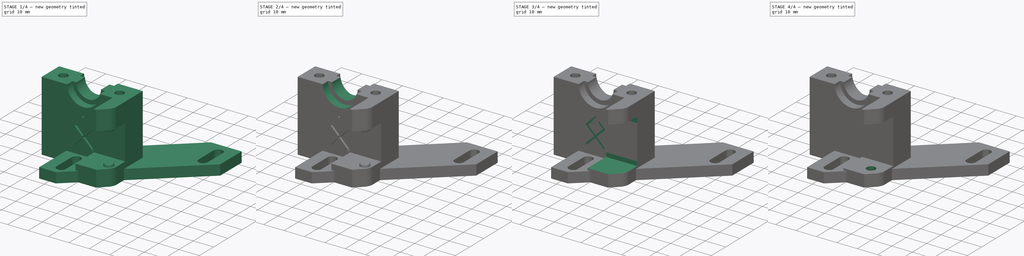
[diagram: build sequence overview — one tinted view per stage of 4, left to right]
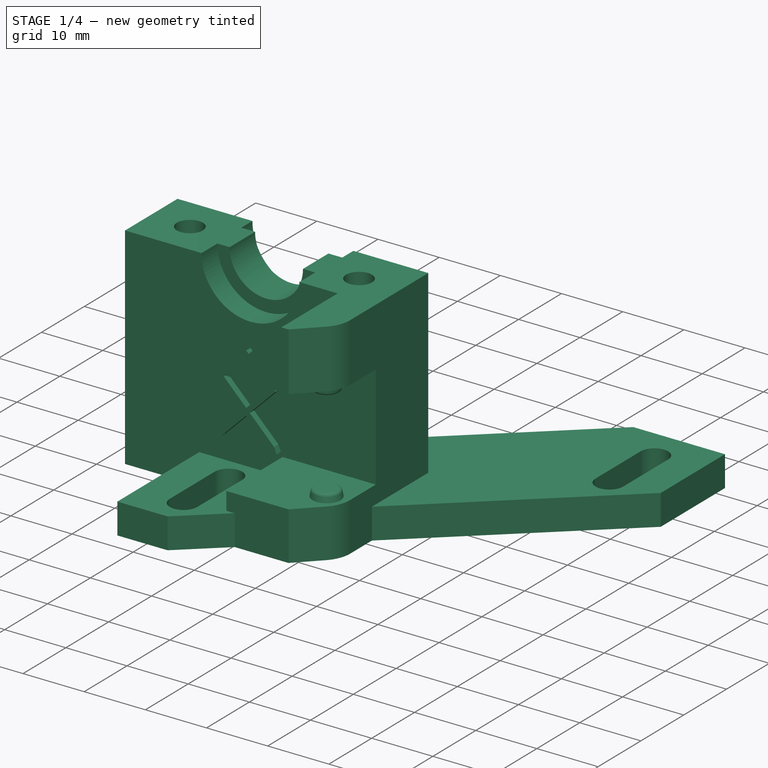
[diagram: stage 1 of 4 — iso view after this stage's code; geometry added in this stage tinted green]
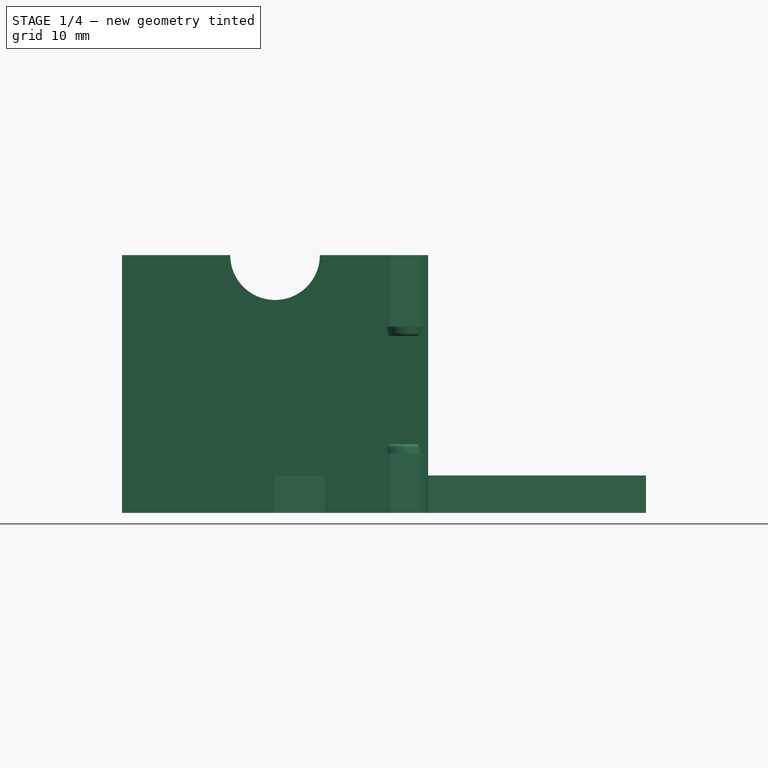
[diagram: stage 1 of 4 — front view after this stage's code; geometry added in this stage tinted green]
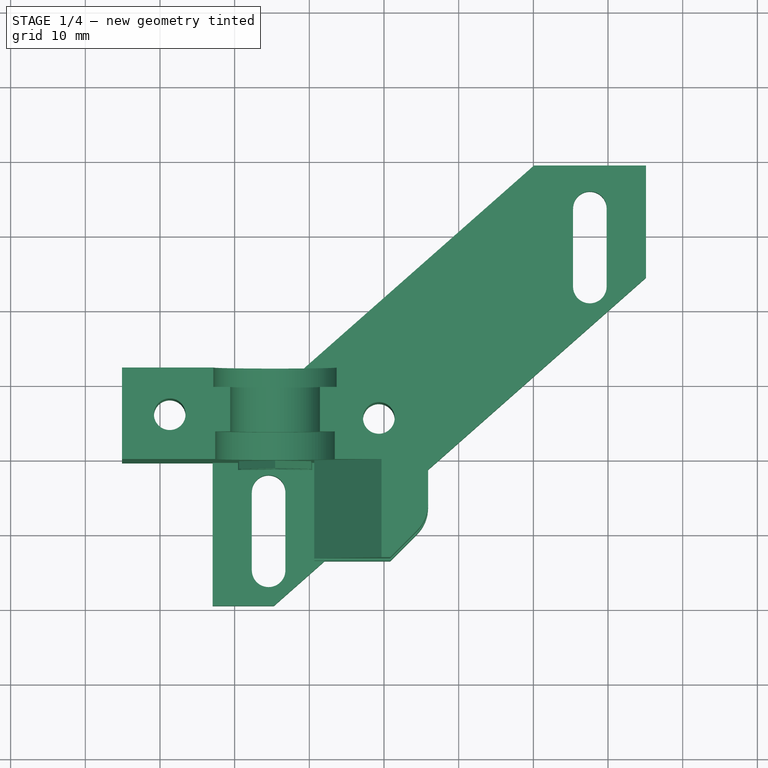
[diagram: stage 1 of 4 — top view after this stage's code; geometry added in this stage tinted green]
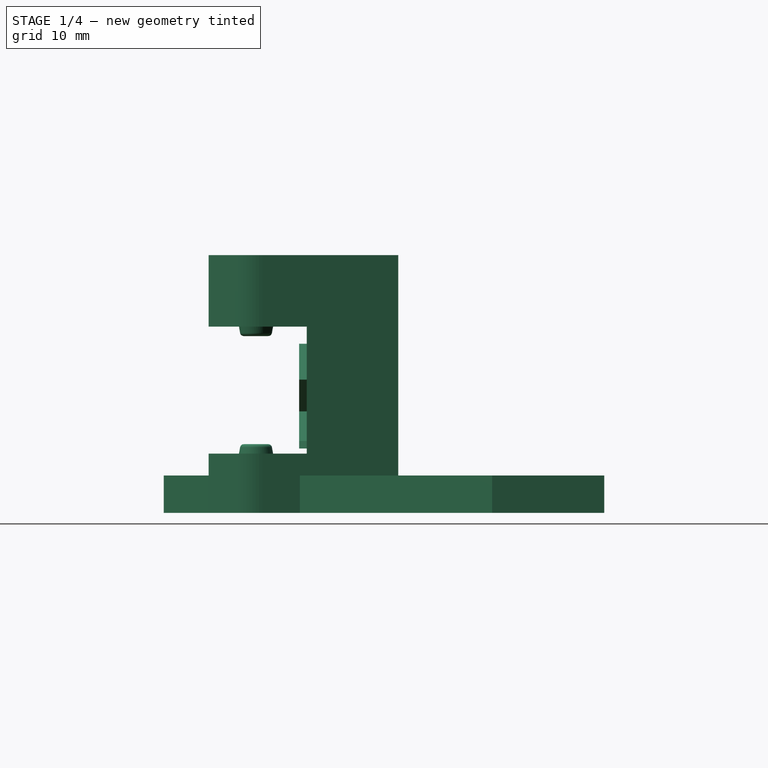
[diagram: stage 1 of 4 — right view after this stage's code; geometry added in this stage tinted green]
FCSTD DOCUMENT  (FreeCAD 0.18R16131 (Git))
Label: Holder_Chain
License: All rights reserved
LicenseURL: http://en.wikipedia.org/wiki/All_rights_reserved
objects: PartDesign::Pocket×8, Sketcher::SketchObject×7, App::MeasureDistance×6, Part::Feature×1, PartDesign::FeatureBase×1, PartDesign::Body×1
note: 26 computed .brp shape members not serialized (recipe doc carries the construction recipe); baked Part::Feature solids carry a one-line shape summary decoded from their .brp

FEATURE [Part::Feature] E3DV6_E3DHolder_with_Chain_V4001001001_solid  label="E3DV6_E3DHolder_with_Chain_V4003 (Solid)"
  shape: bbox 70.18 x 58.97 x 34.5 mm, 2813 faces (baked)
FEATURE [PartDesign::FeatureBase] BaseFeature
  BaseFeature = -> E3DV6_E3DHolder_with_Chain_V4001001001_solid
FEATURE [Sketcher::SketchObject] Sketch  label="BigHole"
  MapMode = 5
  Placement = pos=(0,111.907,0) rot=(0,0.707107,0.707107;3.14159rad)
  Support = -> [BaseFeature]
  sketch-geometry (1):
    g0: Circle CenterX=-95.4037 CenterY=34.4932 CenterZ=0 NormalX=0 NormalY=0 NormalZ=1 AngleXU=0 Radius=8.25
  constraints (1):
    c: Radius(g0) = 8.25  'BigHole'
FEATURE [PartDesign::Pocket] Pocket  label="BigHoleUnder"
  BaseFeature = -> BaseFeature
  Length = 2.6
  Length2 = 100
  Profile = -> Sketch
  Type = 0
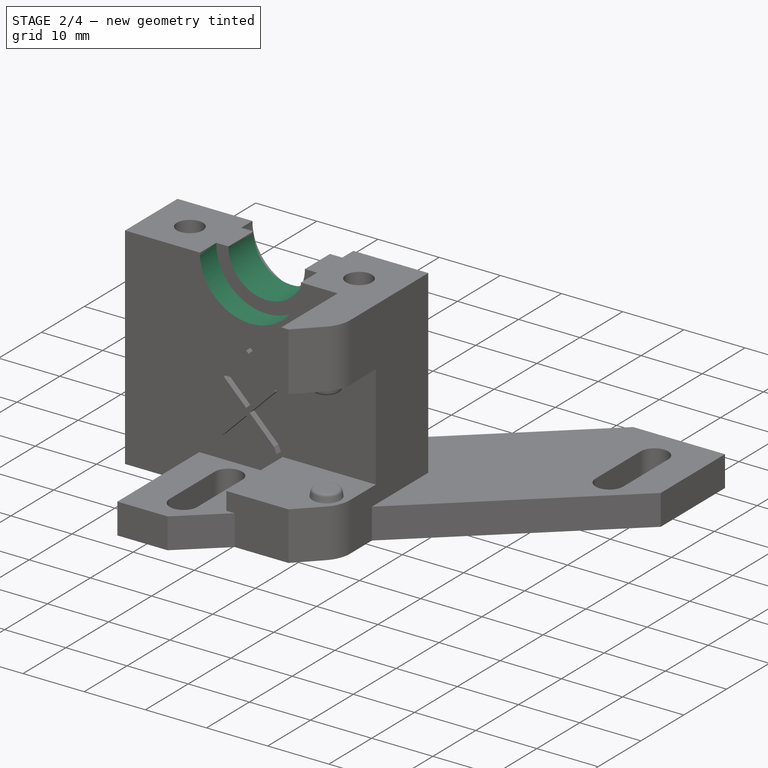
[diagram: stage 2 of 4 — iso view after this stage's code; geometry added in this stage tinted green]
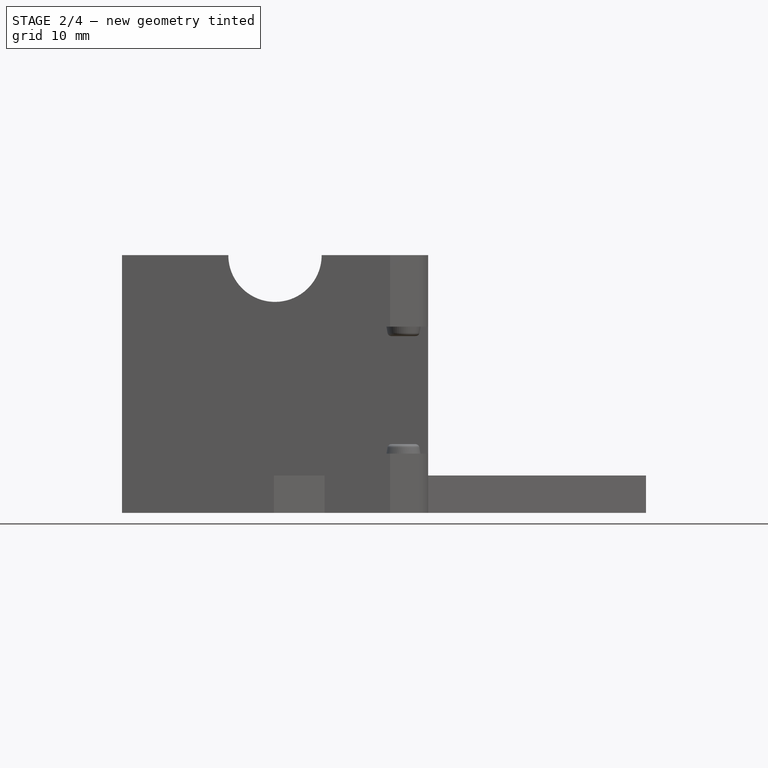
[diagram: stage 2 of 4 — front view after this stage's code; geometry added in this stage tinted green]
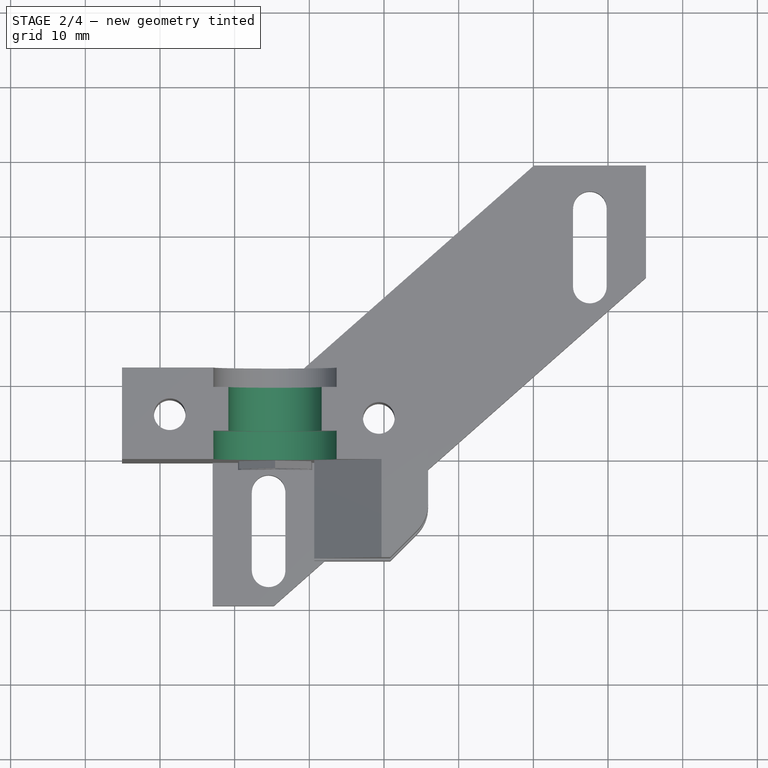
[diagram: stage 2 of 4 — top view after this stage's code; geometry added in this stage tinted green]
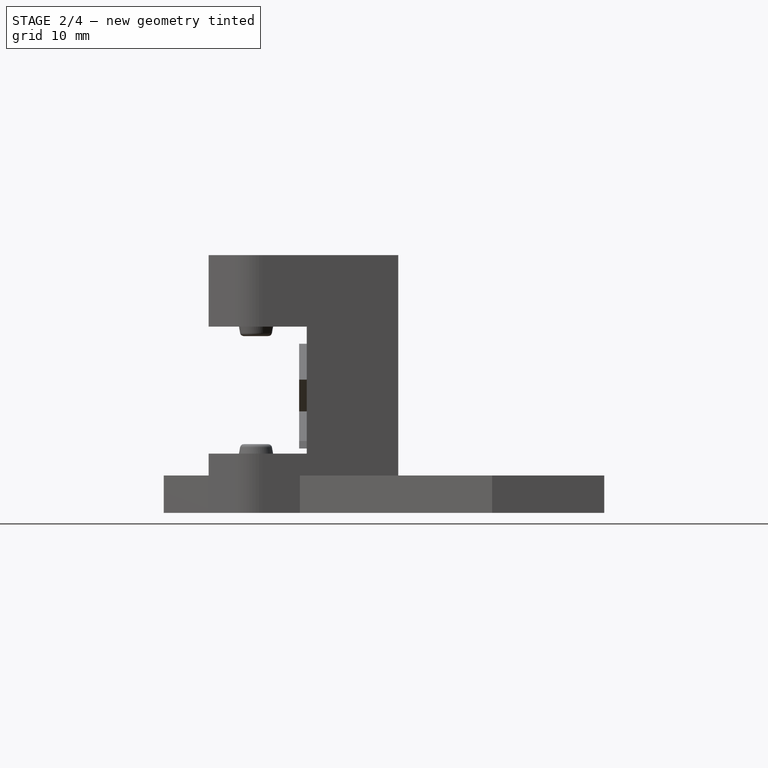
[diagram: stage 2 of 4 — right view after this stage's code; geometry added in this stage tinted green]
FEATURE [Sketcher::SketchObject] Sketch001
  MapMode = 5
  Placement = pos=(6.23e-14,109.307,-1.082e-13) rot=(0,0.707107,0.707107;3.14159rad)
  Support = -> [Pocket]
  sketch-geometry (1):
    g0: Circle CenterX=-95.4017 CenterY=34.4959 CenterZ=0 NormalX=0 NormalY=0 NormalZ=1 AngleXU=0 Radius=6.25
  constraints (1):
    c: Radius(g0) = 6.25
FEATURE [PartDesign::Pocket] Pocket001  label="SmallHole"
  BaseFeature = -> Pocket
  Length = 5
  Length2 = 100
  Profile = -> Sketch001
  Type = 1
FEATURE [Sketcher::SketchObject] Sketch002
  MapMode = 5
  Placement = pos=(0,99.657,0) rot=(1,0,0;1.5708rad)
  Support = -> [Pocket001]
  sketch-geometry (1):
    g0: Circle CenterX=95.4036 CenterY=34.4795 CenterZ=0 NormalX=0 NormalY=0 NormalZ=1 AngleXU=0 Radius=8.25
  constraints (1):
    c: Radius(g0) = 8.25
FEATURE [PartDesign::Pocket] Pocket002  label="BigHoleTop"
  BaseFeature = -> Pocket001
  Length = 3.8
  Length2 = 100
  Profile = -> Sketch002
  Type = 0
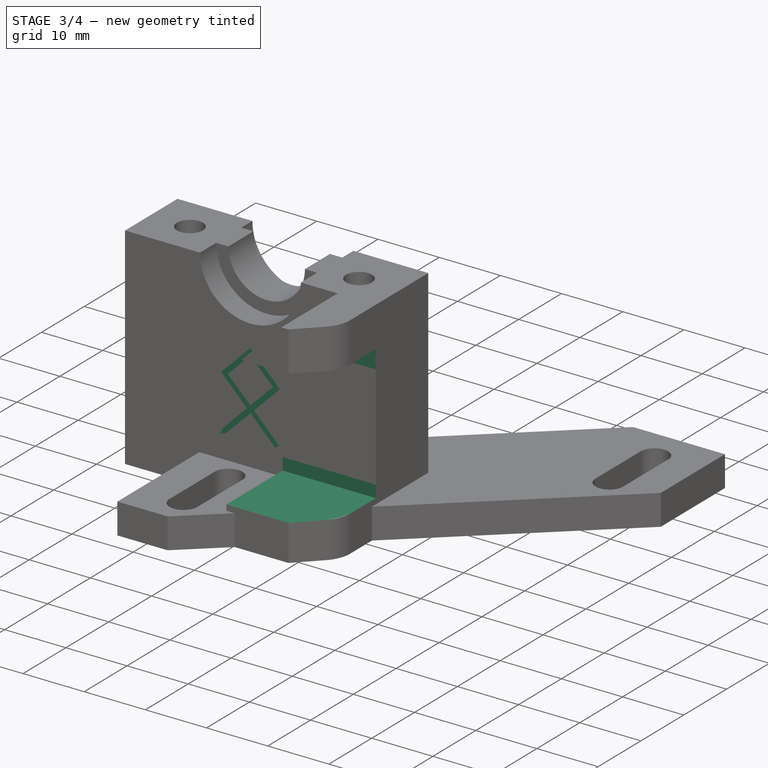
[diagram: stage 3 of 4 — iso view after this stage's code; geometry added in this stage tinted green]
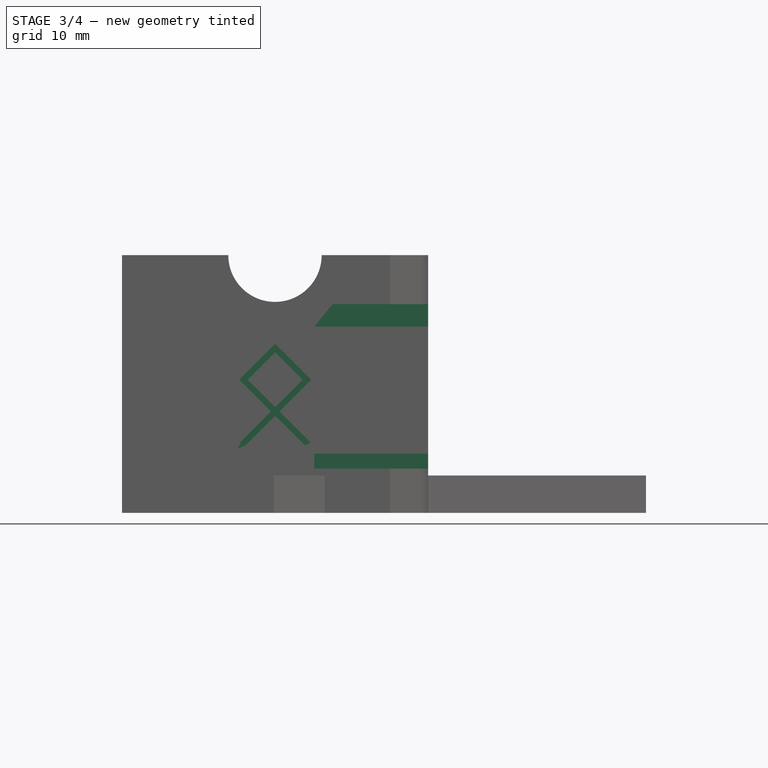
[diagram: stage 3 of 4 — front view after this stage's code; geometry added in this stage tinted green]
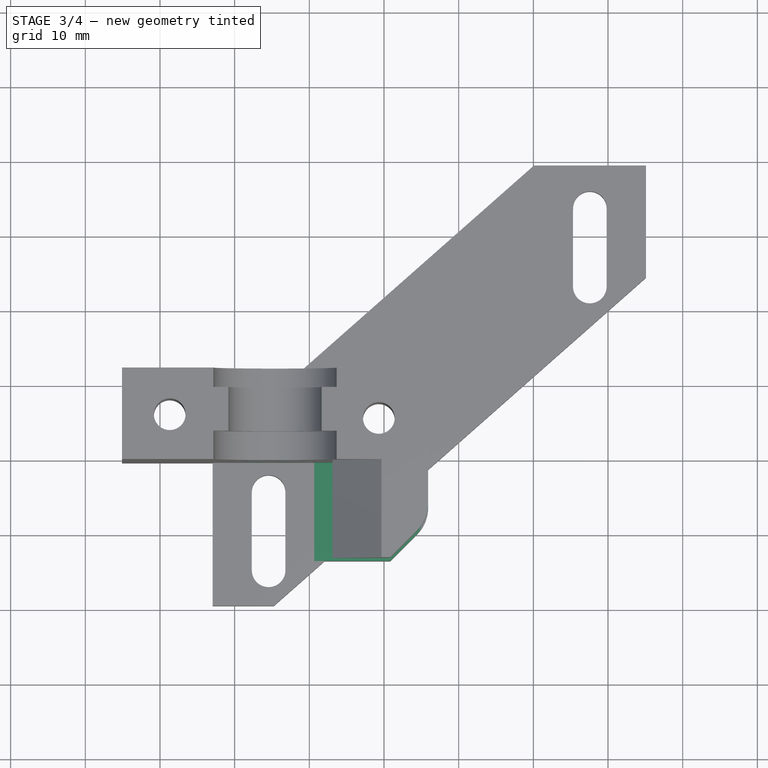
[diagram: stage 3 of 4 — top view after this stage's code; geometry added in this stage tinted green]
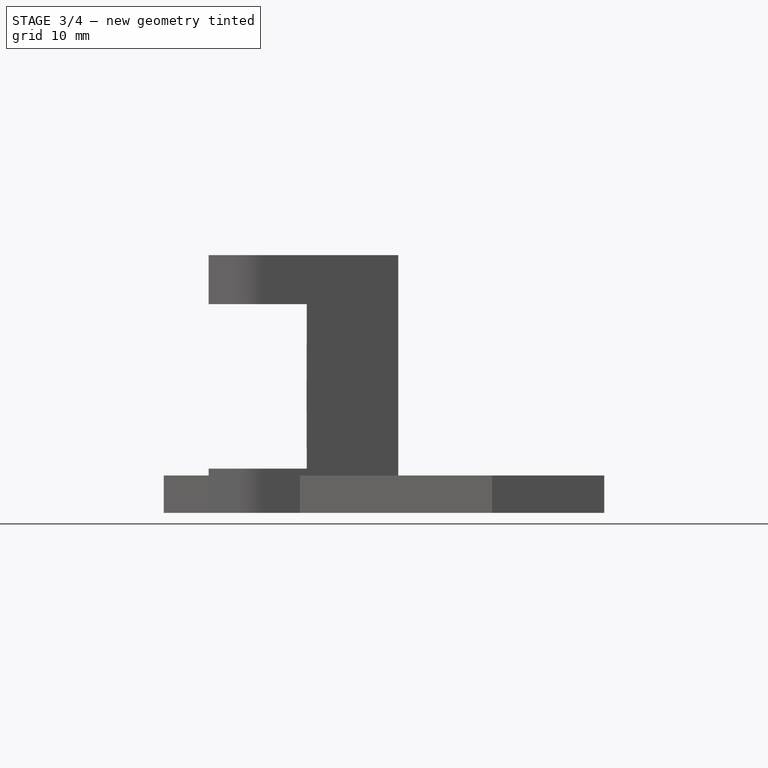
[diagram: stage 3 of 4 — right view after this stage's code; geometry added in this stage tinted green]
FEATURE [App::MeasureDistance] Distance001  label="Distance: 12,22 mm"
  Distance = 12.224
  P1 = (74.9077,111.881,34.5)
  P2 = (74.9077,99.657,34.5)
FEATURE [App::MeasureDistance] Distance  label="Distance: 2,60 mm"
  Distance = 2.60008
  P1 = (87.1537,111.907,34.5)
  P2 = (87.1747,109.307,34.5)
FEATURE [App::MeasureDistance] Distance002  label="Distance: 5,85 mm"
  Distance = 5.85
  P1 = (89.1517,109.307,34.5)
  P2 = (89.1517,103.457,34.5)
FEATURE [App::MeasureDistance] Distance003  label="Distance: 3,80 mm"
  Distance = 3.80053
  P1 = (87.2169,103.457,34.5)
  P2 = (87.1536,99.657,34.5)
FEATURE [PartDesign::Pocket] Pocket003  label="Marking"
  BaseFeature = -> Pocket002
  Length = 1
  Length2 = 100
  Profile = -> Pocket002 [Face595]
  Type = 0
FEATURE [App::MeasureDistance] Distance004  label="Distance: 13,14 mm"
  Distance = 13.1444
  P1 = (100.749,86.5129,24.9391)
  P2 = (100.667,99.657,24.9164)
FEATURE [Sketcher::SketchObject] Sketch003
  ExternalGeometry = -> [Pocket003]
  MapMode = 5
  Placement = pos=(0,86.5129,0) rot=(1,0,0;1.5708rad)
  Support = -> [Pocket003]
  sketch-geometry (4):
    g0: LineSegment StartX=100.086 StartY=5.92109 StartZ=0 EndX=117.184 EndY=5.92109 EndZ=0
    g1: LineSegment StartX=117.184 StartY=5.92109 StartZ=0 EndX=117.184 EndY=9.87185 EndZ=0
    g2: LineSegment StartX=117.184 StartY=9.87185 StartZ=0 EndX=100.086 EndY=9.87185 EndZ=0
    g3: LineSegment StartX=100.086 StartY=9.87185 StartZ=0 EndX=100.086 EndY=5.92109 EndZ=0
  constraints (9):
    c: Coincident(g0,g1)
    c: Coincident(g1,g2)
    c: Coincident(g2,g3)
    c: Coincident(g3,g0)
    c: Horizontal(g0)
    c: Horizontal(g2)
    c: Vertical(g1)
    c: Vertical(g3)
    c: DistanceY(g0,g-4) = 2
FEATURE [PartDesign::Pocket] Pocket004
  BaseFeature = -> Pocket003
  Length = 13.14
  Length2 = 100
  Profile = -> Sketch003
  Type = 0
FEATURE [Sketcher::SketchObject] Sketch004
  ExternalGeometry = -> [Pocket004]
  MapMode = 5
  Placement = pos=(0,86.5129,0) rot=(1,0,0;1.5708rad)
  Support = -> [Pocket004]
  sketch-geometry (4):
    g0: LineSegment StartX=98.4898 StartY=27.9391 StartZ=0 EndX=119.979 EndY=27.9391 EndZ=0
    g1: LineSegment StartX=119.979 StartY=27.9391 StartZ=0 EndX=119.979 EndY=23.5182 EndZ=0
    g2: LineSegment StartX=119.979 StartY=23.5182 StartZ=0 EndX=98.4898 EndY=23.5182 EndZ=0
    g3: LineSegment StartX=98.4898 StartY=23.5182 StartZ=0 EndX=98.4898 EndY=27.9391 EndZ=0
  constraints (9):
    c: Coincident(g0,g1)
    c: Coincident(g1,g2)
    c: Coincident(g2,g3)
    c: Coincident(g3,g0)
    c: Horizontal(g0)
    c: Horizontal(g2)
    c: Vertical(g1)
    c: Vertical(g3)
    c: DistanceY(g-3,g0) = 3
FEATURE [PartDesign::Pocket] Pocket005
  BaseFeature = -> Pocket004
  Length = 13.14
  Length2 = 100
  Profile = -> Sketch004
  Type = 0
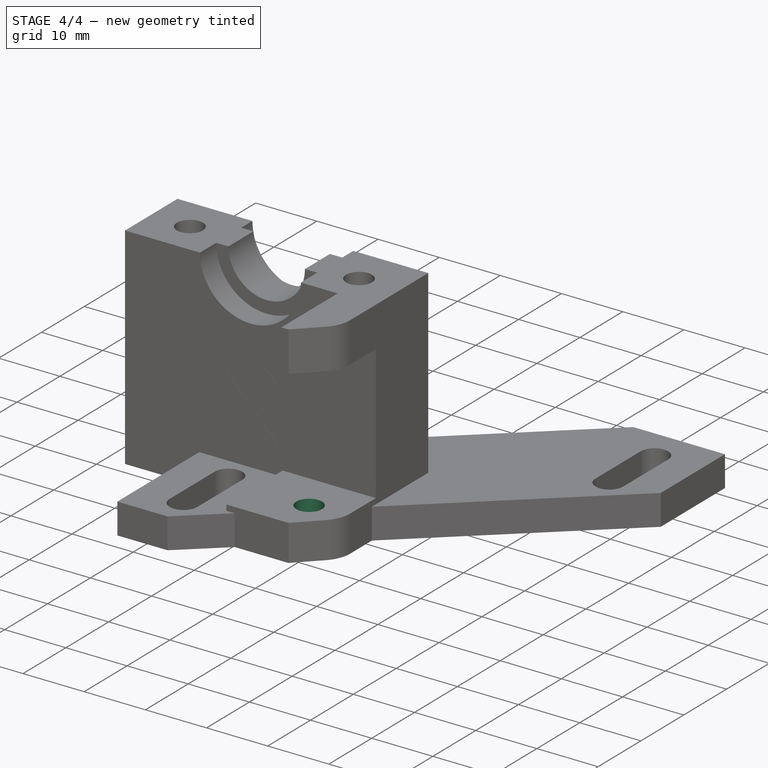
[diagram: stage 4 of 4 — iso view after this stage's code; geometry added in this stage tinted green]
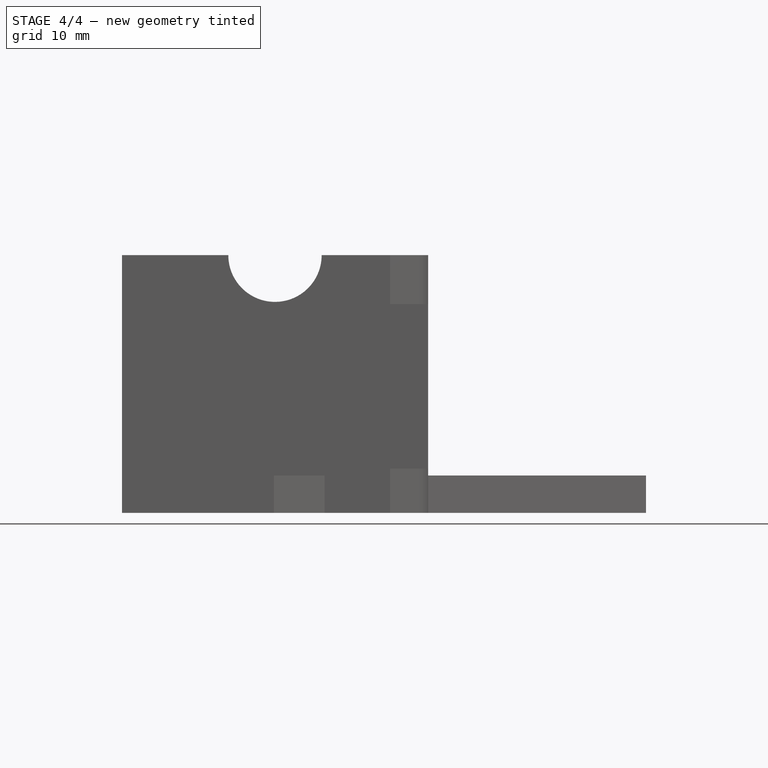
[diagram: stage 4 of 4 — front view after this stage's code; geometry added in this stage tinted green]
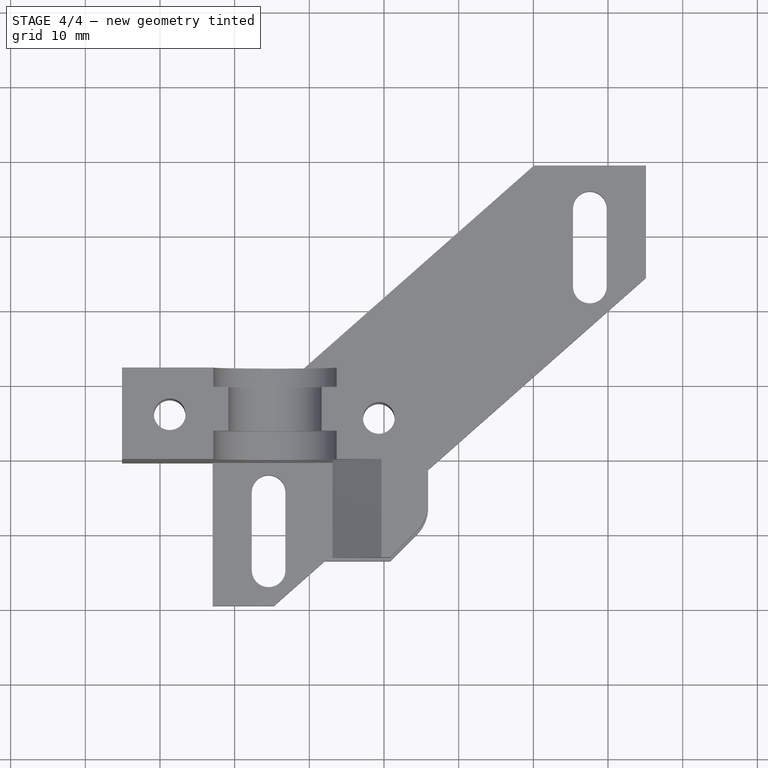
[diagram: stage 4 of 4 — top view after this stage's code; geometry added in this stage tinted green]
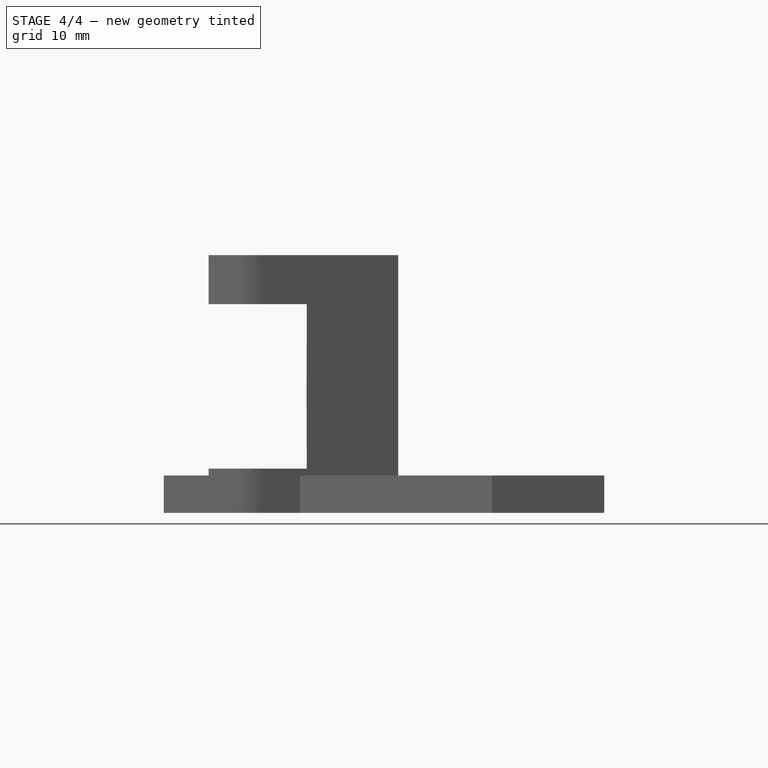
[diagram: stage 4 of 4 — right view after this stage's code; geometry added in this stage tinted green]
FEATURE [App::MeasureDistance] Distance005  label="Distance: 22,16 mm"
  Distance = 22.163
  P1 = (100.741,86.5129,5.90265)
  P2 = (103.107,86.5129,27.9391)
FEATURE [Sketcher::SketchObject] Sketch005
  ExternalGeometry = -> [Pocket005]
  MapMode = 5
  Placement = pos=(0,6.2e-15,27.9391) rot=(1,0,0;3.14159rad)
  Support = -> [Pocket005]
  sketch-geometry (1):
    g0: Circle CenterX=109.908 CenterY=-92.6529 CenterZ=0 NormalX=0 NormalY=0 NormalZ=1 AngleXU=0 Radius=2.1
  constraints (3):
    c: Radius(g0) = 2.1
    c: DistanceY(g-3,g0) = 7
    c: DistanceX(g0,g-3) = 6
FEATURE [PartDesign::Pocket] Pocket006
  BaseFeature = -> Pocket005
  Length = 2
  Length2 = 100
  Profile = -> Sketch005
  Type = 0
FEATURE [Sketcher::SketchObject] Sketch006
  ExternalGeometry = -> [Pocket006]
  MapMode = 5
  Placement = pos=(0,1.3e-15,5.92109) rot=(0,0,1;0rad)
  Support = -> [Pocket006]
  sketch-geometry (1):
    g0: Circle CenterX=109.908 CenterY=92.6529 CenterZ=0 NormalX=0 NormalY=0 NormalZ=1 AngleXU=0 Radius=2.1
  constraints (3):
    c: Radius(g0) = 2.1
    c: DistanceY(g0,g-3) = 7
    c: DistanceX(g0,g-3) = 6
FEATURE [PartDesign::Pocket] Pocket007
  BaseFeature = -> Pocket006
  Length = 2
  Length2 = 100
  Profile = -> Sketch006
  Type = 0
FEATURE [PartDesign::Body] Body
  BaseFeature = -> E3DV6_E3DHolder_with_Chain_V4001001001_solid
  Group = -> [BaseFeature,Sketch,Pocket,Sketch001,Pocket001,Sketch002,Pocket002,Pocket003,Sketch003,Pocket004,Sketch004,Pocket005,Sketch005,Pocket006,Sketch006,Pocket007]
  Origin = -> Origin
  Tip = -> Pocket007
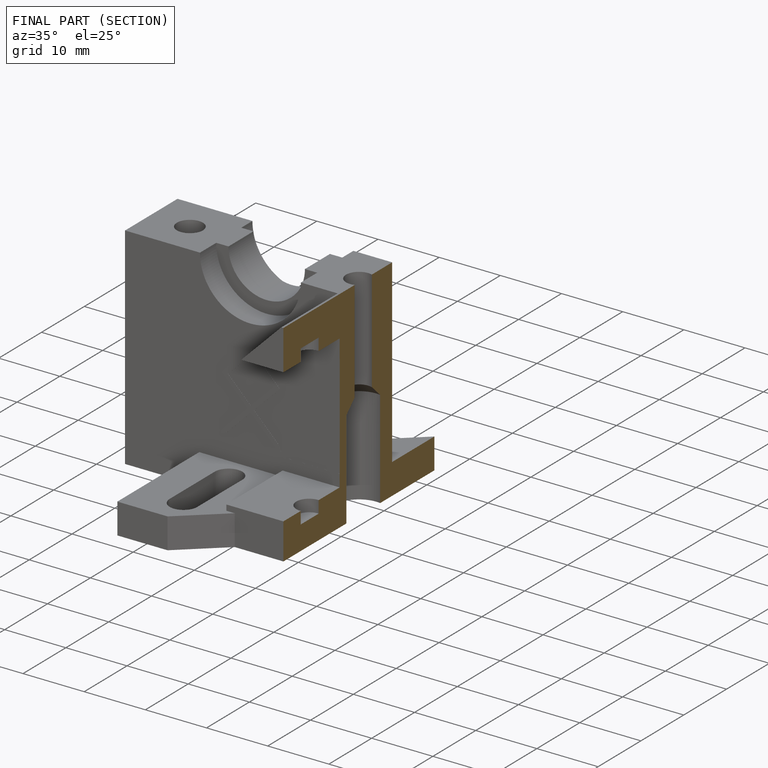
[diagram: finished part — half-section view (interior)]
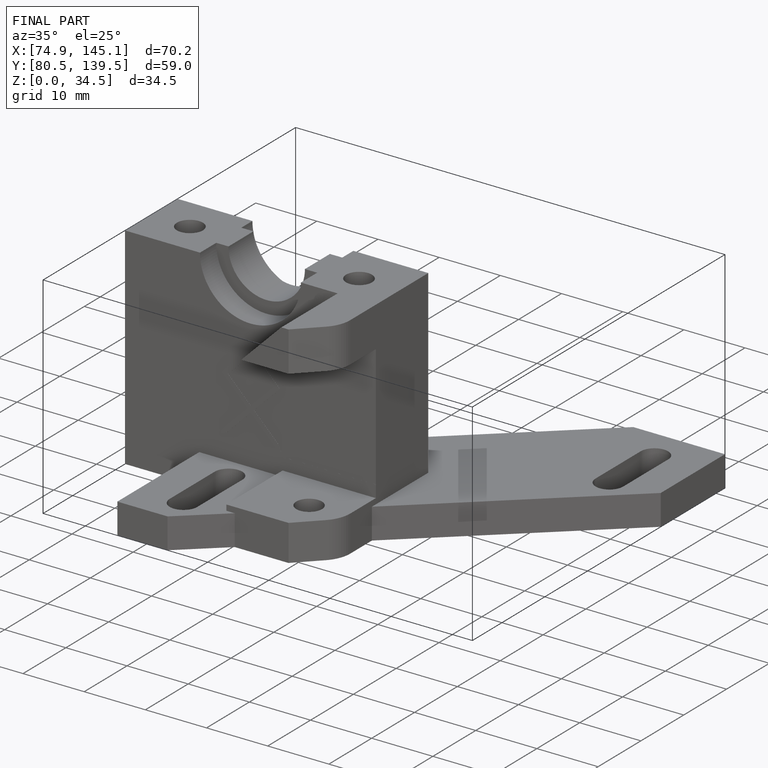
[diagram: finished part — iso view with bounding-box wireframe]
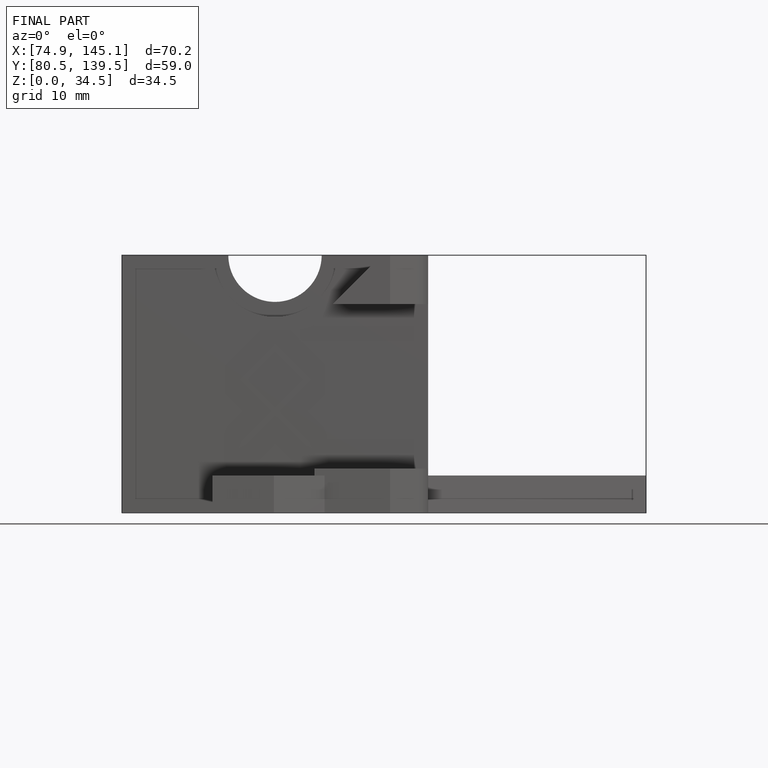
[diagram: finished part — front view with bounding-box wireframe]
